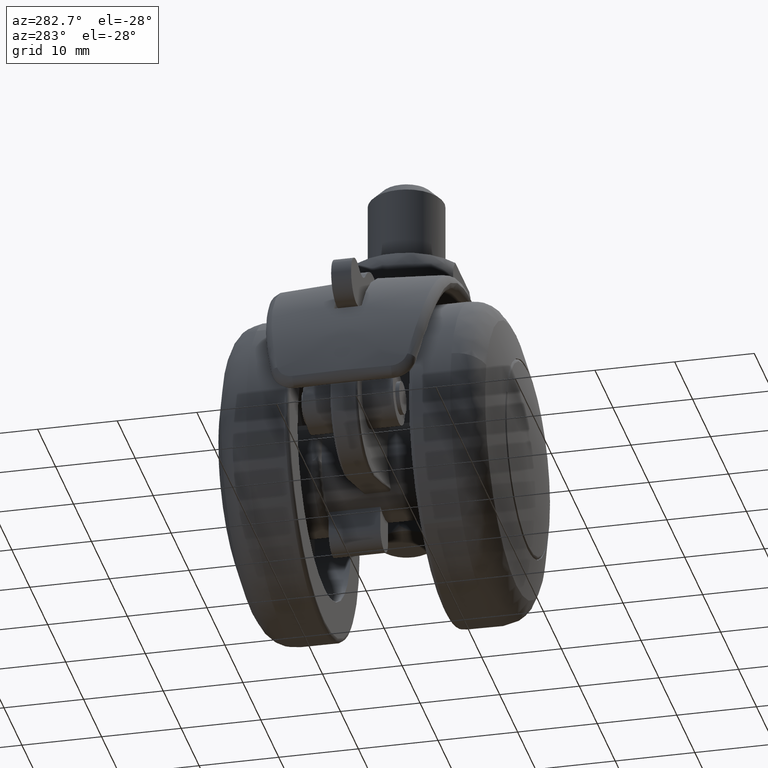
[diagram: clean part render]
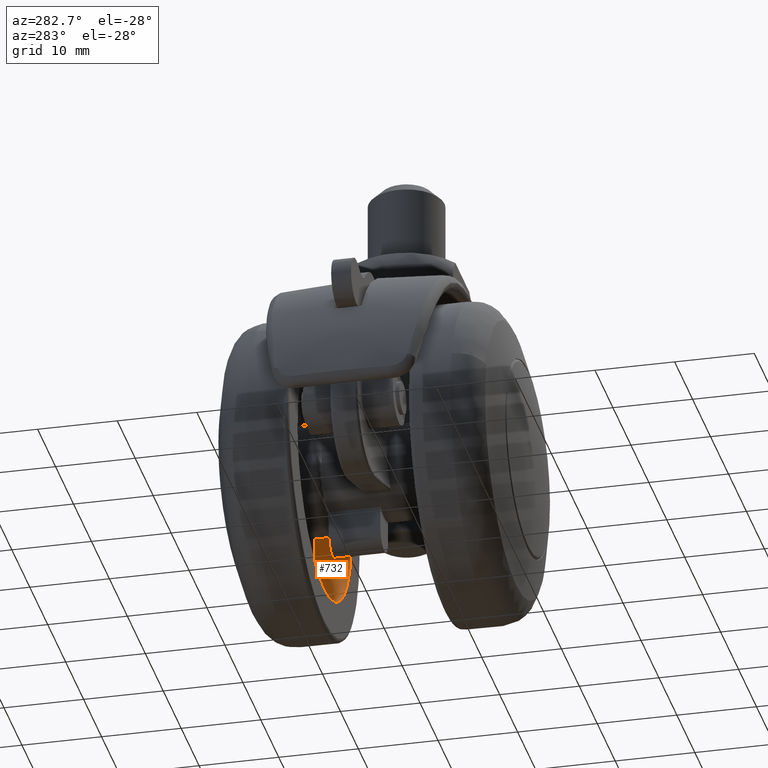
[diagram: same view with one face highlighted and labeled with its STEP entity id]
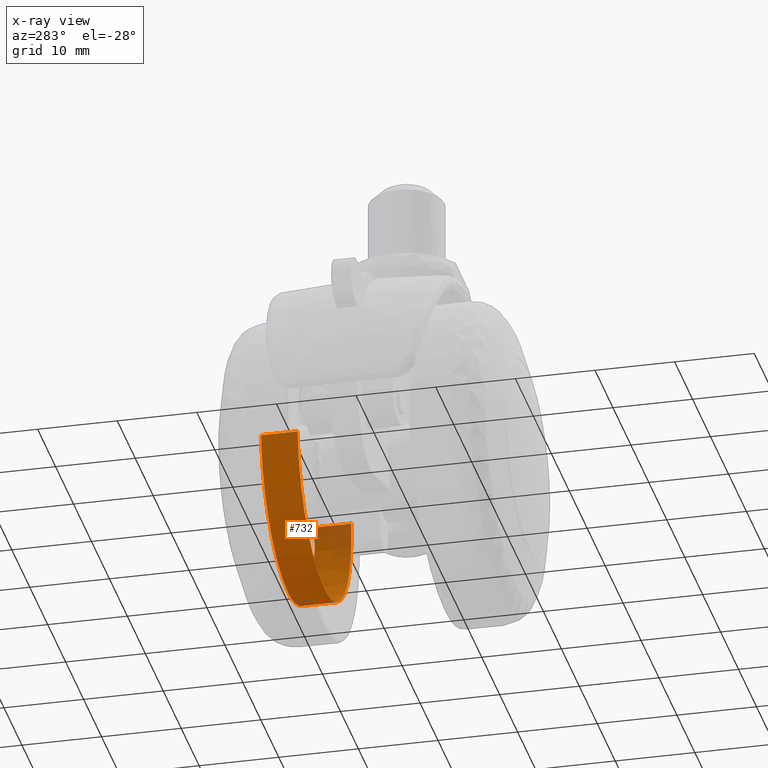
[diagram: x-ray of the same camera — body ghosted, the highlighted face saturated]
A machine part, auxiliary view. The second image highlights one B-rep face of the part: STEP entity #732.
The next image is the same camera in x-ray: the body ghosted, the highlighted face saturated — about 11% of this face is hidden behind the body in this view.
In plain terms, the highlighted face is a freeform B-spline surface patch.
Its self-contained STEP definition (entity closure, byte-faithful):
#630=CARTESIAN_POINT('',(-14.895142895454988,-7.385319194229118,1.770513519851378));
#631=CARTESIAN_POINT('',(-14.945814231729083,-7.385319194229117,1.344220929569667));
#632=CARTESIAN_POINT('',(-14.972021976328000,-7.385319194229117,0.915728093022856));
#633=CARTESIAN_POINT('',(-15.887750069350853,-7.385319194229119,-14.056293883305143));
#634=CARTESIAN_POINT('',(-0.915728093022855,-7.385319194229117,-14.972021976328000));
#635=CARTESIAN_POINT('',(14.056293883305147,-7.385319194229119,-15.887750069350853));
#636=CARTESIAN_POINT('',(14.972021976328000,-7.385319194229117,-0.915728093022853));
#637=CARTESIAN_POINT('',(-14.895142895454988,-12.204780056754194,1.770513519851378));
#638=CARTESIAN_POINT('',(-14.945814231729083,-12.204780056754190,1.344220929569667));
#639=CARTESIAN_POINT('',(-14.972021976328000,-12.204780056754190,0.915728093022856));
#640=CARTESIAN_POINT('',(-15.887750069350853,-12.204780056754187,-14.056293883305143));
#641=CARTESIAN_POINT('',(-0.915728093022855,-12.204780056754190,-14.972021976328000));
#642=CARTESIAN_POINT('',(14.056293883305147,-12.204780056754187,-15.887750069350853));
#643=CARTESIAN_POINT('',(14.972021976328000,-12.204780056754190,-0.915728093022853));
#651=(BOUNDED_SURFACE()B_SPLINE_SURFACE(2,1,((#630,#637),(#631,#638),(#632,#639),(#633,#640),(#634,#641),(#635,#642),(#636,#643)),.UNSPECIFIED.,.F.,.F.,.U.)B_SPLINE_SURFACE_WITH_KNOTS((3,2,2,3),(2,2),(0.0,0.994112549695429,25.846926292081129,50.699740034466821),(0.0,4.819460862525070),.UNSPECIFIED.)GEOMETRIC_REPRESENTATION_ITEM()RATIONAL_B_SPLINE_SURFACE(((0.977505800795127,0.977505800795127),(0.988284271247462,0.988284271247462),(1.0,1.0),(0.707106781186548,0.707106781186548),(1.0,1.0),(0.707106781186548,0.707106781186548),(1.0,1.0)))REPRESENTATION_ITEM('')SURFACE());
#652=CARTESIAN_POINT('',(-14.895143268031070,-7.500000000000112,1.770510385402628));
#653=VERTEX_POINT('',#652);
#654=CARTESIAN_POINT('',(0.0,-7.500000000000090,-15.0));
#655=VERTEX_POINT('',#654);
#656=CARTESIAN_POINT('',(-14.895143268031076,-7.500000000000112,1.770510385402628));
#657=CARTESIAN_POINT('',(-15.000000000000002,-7.500000000000091,0.888360210985831));
#658=CARTESIAN_POINT('',(-15.0,-7.500000000000090,1.487897E-015));
#659=CARTESIAN_POINT('',(-14.999999999999996,-7.500000000000089,-14.999999999999996));
#660=CARTESIAN_POINT('',(0.0,-7.500000000000090,-15.0));
#668=(BOUNDED_CURVE()B_SPLINE_CURVE(2,(#656,#657,#658,#659,#660),.UNSPECIFIED.,.F.,.U.)B_SPLINE_CURVE_WITH_KNOTS((3,2,3),(0.229562509079723,0.250000000000000,0.500000000000000),.UNSPECIFIED.)CURVE()GEOMETRIC_REPRESENTATION_ITEM()RATIONAL_B_SPLINE_CURVE((0.956026823894947,0.976055989999557,1.0,0.707106781186547,1.0))REPRESENTATION_ITEM(''));
#669=EDGE_CURVE('',#653,#655,#668,.T.);
#670=ORIENTED_EDGE('',*,*,#669,.F.);
#671=CARTESIAN_POINT('',(-14.895143263547910,-12.087232230838939,1.770510423119121));
#672=VERTEX_POINT('',#671);
#673=CARTESIAN_POINT('',(-14.895143268031070,-7.500000000000112,1.770510385402628));
#674=CARTESIAN_POINT('',(-14.895143263547910,-12.087232230838939,1.770510423119121));
#675=QUASI_UNIFORM_CURVE('',1,(#673,#674),.UNSPECIFIED.,.F.,.U.);
#676=EDGE_CURVE('',#653,#672,#675,.T.);
#677=ORIENTED_EDGE('',*,*,#676,.T.);
#678=CARTESIAN_POINT('',(0.0,-12.087232230838939,-15.0));
#679=VERTEX_POINT('',#678);
#680=CARTESIAN_POINT('',(-14.895143263547912,-12.087232230838936,1.770510423119121));
#681=CARTESIAN_POINT('',(-15.000000000000004,-12.087232230838945,0.888360230043443));
#682=CARTESIAN_POINT('',(-15.0,-12.087232230838939,1.487897E-015));
#683=CARTESIAN_POINT('',(-14.999999999999996,-12.087232230838939,-14.999999999999996));
#684=CARTESIAN_POINT('',(0.0,-12.087232230838939,-15.0));
#692=(BOUNDED_CURVE()B_SPLINE_CURVE(2,(#680,#681,#682,#683,#684),.UNSPECIFIED.,.F.,.U.)B_SPLINE_CURVE_WITH_KNOTS((3,2,3),(0.229562508651784,0.250000000000000,0.500000000000000),.UNSPECIFIED.)CURVE()GEOMETRIC_REPRESENTATION_ITEM()RATIONAL_B_SPLINE_CURVE((0.956026823056169,0.976055989498196,1.0,0.707106781186547,1.0))REPRESENTATION_ITEM(''));
#693=EDGE_CURVE('',#672,#679,#692,.T.);
#694=ORIENTED_EDGE('',*,*,#693,.T.);
#695=CARTESIAN_POINT('',(14.972022665491700,-12.087232230838939,-0.915716825156851));
#696=VERTEX_POINT('',#695);
#697=CARTESIAN_POINT('',(0.0,-12.087232230838939,-15.0));
#698=CARTESIAN_POINT('',(14.110601642990849,-12.087232230838939,-14.999999999999995));
#699=CARTESIAN_POINT('',(14.972022665491700,-12.087232230838943,-0.915716825156851));
#707=(BOUNDED_CURVE()B_SPLINE_CURVE(2,(#697,#698,#699),.UNSPECIFIED.,.F.,.U.)B_SPLINE_CURVE_WITH_KNOTS((3,3),(0.500000000000000,0.739333092099799),.UNSPECIFIED.)CURVE()GEOMETRIC_REPRESENTATION_ITEM()RATIONAL_B_SPLINE_CURVE((1.0,0.719603841145254,0.976072319983410))REPRESENTATION_ITEM(''));
#708=EDGE_CURVE('',#679,#696,#707,.T.);
#709=ORIENTED_EDGE('',*,*,#708,.T.);
#710=CARTESIAN_POINT('',(14.972022673904799,-7.499999999999893,-0.915716687600522));
#711=VERTEX_POINT('',#710);
#712=CARTESIAN_POINT('',(14.972022673904799,-7.499999999999893,-0.915716687600522));
#713=CARTESIAN_POINT('',(14.972022665491700,-12.087232230838939,-0.915716825156851));
#714=QUASI_UNIFORM_CURVE('',1,(#712,#713),.UNSPECIFIED.,.F.,.U.);
#715=EDGE_CURVE('',#711,#696,#714,.T.);
#716=ORIENTED_EDGE('',*,*,#715,.F.);
#717=CARTESIAN_POINT('',(0.0,-7.500000000000090,-15.0));
#718=CARTESIAN_POINT('',(14.110601772875075,-7.500000000000088,-15.000000000000005));
#719=CARTESIAN_POINT('',(14.972022673904796,-7.499999999999893,-0.915716687600522));
#727=(BOUNDED_CURVE()B_SPLINE_CURVE(2,(#717,#718,#719),.UNSPECIFIED.,.F.,.U.)B_SPLINE_CURVE_WITH_KNOTS((3,3),(0.500000000000000,0.739333093685083),.UNSPECIFIED.)CURVE()GEOMETRIC_REPRESENTATION_ITEM()RATIONAL_B_SPLINE_CURVE((1.0,0.719603839287978,0.976072323380980))REPRESENTATION_ITEM(''));
#728=EDGE_CURVE('',#655,#711,#727,.T.);
#729=ORIENTED_EDGE('',*,*,#728,.F.);
#730=EDGE_LOOP('',(#670,#677,#694,#709,#716,#729));
#731=FACE_OUTER_BOUND('',#730,.T.);
#732=ADVANCED_FACE('',(#731),#651,.F.);